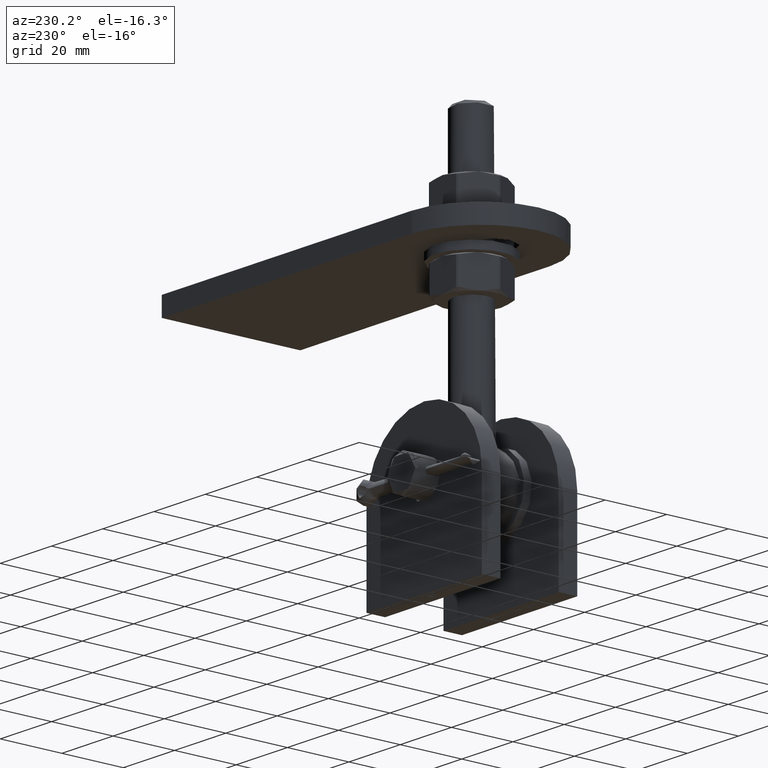
[diagram: clean part render]
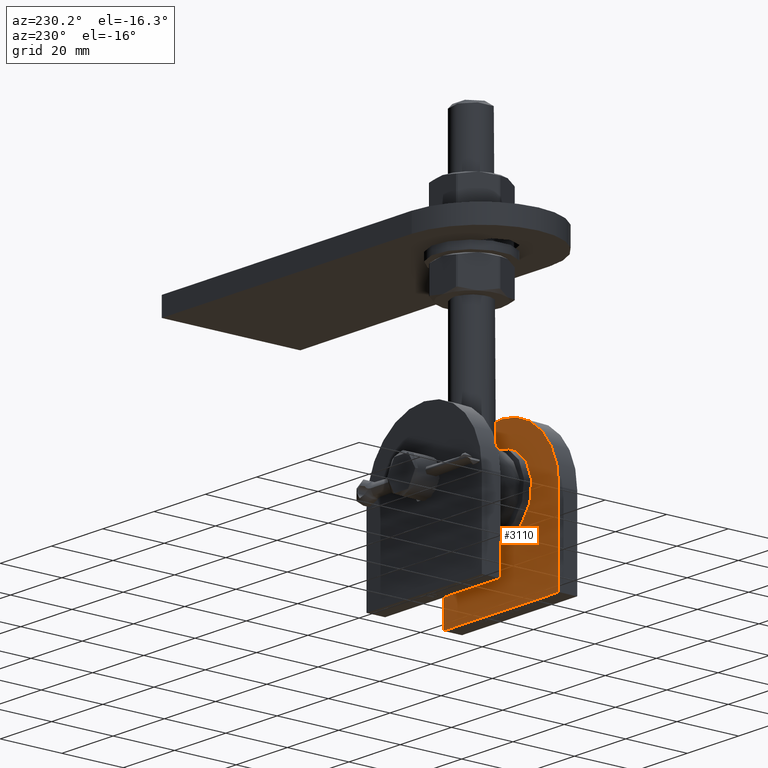
[diagram: same view with one face highlighted and labeled with its STEP entity id]
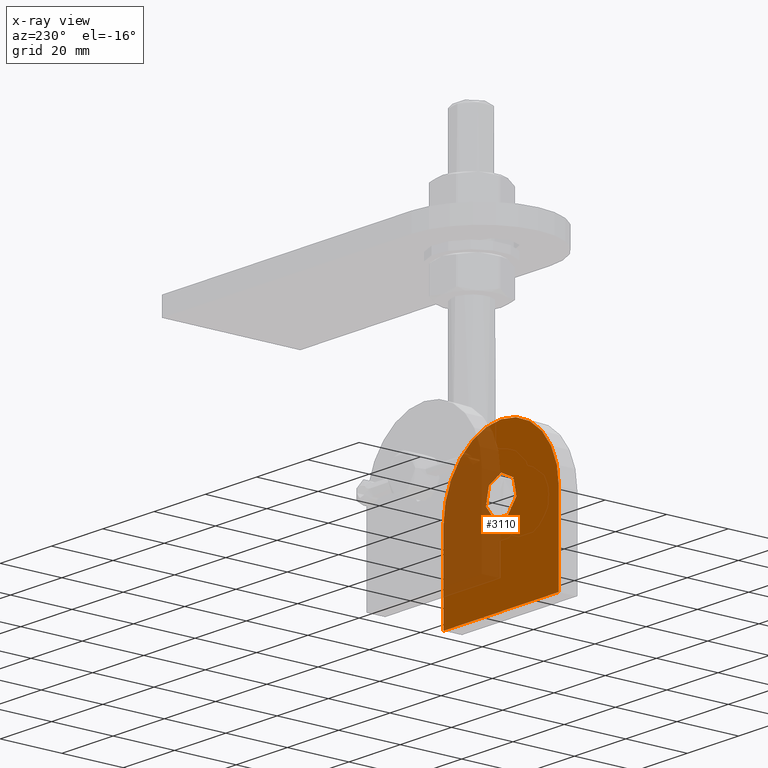
[diagram: x-ray of the same camera — body ghosted, the highlighted face saturated]
A machine part, auxiliary view. The second image highlights one B-rep face of the part: STEP entity #3110.
The next image is the same camera in x-ray: the body ghosted, the highlighted face saturated — about 38% of this face is hidden behind the body in this view.
In plain terms, the highlighted planar face has unit normal (0, -1, 0).
Its self-contained STEP definition (entity closure, byte-faithful):
#944 = PLANE ( 'NONE',  #12430 ) ;
#1237 = CARTESIAN_POINT ( 'NONE',  ( 3.469446951953614189E-15, 2.999999999999988898, 11.09999999999999787 ) ) ;
#1329 = ORIENTED_EDGE ( 'NONE', *, *, #5517, .T. ) ;
#1407 = EDGE_CURVE ( 'NONE', #14426, #14426, #3626, .T. ) ;
#1761 = LINE ( 'NONE', #10234, #8148 ) ;
#2472 = DIRECTION ( 'NONE',  ( 0.000000000000000000, 0.000000000000000000, -1.000000000000000000 ) ) ;
#2527 = FACE_OUTER_BOUND ( 'NONE', #9887, .T. ) ;
#2652 = DIRECTION ( 'NONE',  ( 0.000000000000000000, 1.000000000000000000, -0.000000000000000000 ) ) ;
#3015 = DIRECTION ( 'NONE',  ( 0.000000000000000000, 0.000000000000000000, 1.000000000000000000 ) ) ;
#3110 = ADVANCED_FACE ( 'NONE', ( #2527, #12893 ), #944, .F. ) ;
#3529 = DIRECTION ( 'NONE',  ( 0.000000000000000000, -1.000000000000000000, 0.000000000000000000 ) ) ;
#3626 = CIRCLE ( 'NONE', #8905, 6.099999999999999645 ) ;
#3637 = VERTEX_POINT ( 'NONE', #16197 ) ;
#5286 = DIRECTION ( 'NONE',  ( -0.000000000000000000, -0.000000000000000000, 1.000000000000000000 ) ) ;
#5517 = EDGE_CURVE ( 'NONE', #16701, #3637, #9238, .T. ) ;
#6522 = VECTOR ( 'NONE', #16572, 1000.000000000000000 ) ;
#6559 = ORIENTED_EDGE ( 'NONE', *, *, #13629, .T. ) ;
#6813 = EDGE_CURVE ( 'NONE', #3637, #14545, #8824, .T. ) ;
#6825 = CARTESIAN_POINT ( 'NONE',  ( -22.50000000000000000, 2.999999999999988898, 2.499999999999995115 ) ) ;
#6952 = CIRCLE ( 'NONE', #8396, 22.50000000000000355 ) ;
#7918 = ORIENTED_EDGE ( 'NONE', *, *, #1407, .F. ) ;
#8148 = VECTOR ( 'NONE', #15602, 1000.000000000000000 ) ;
#8386 = VECTOR ( 'NONE', #5286, 1000.000000000000000 ) ;
#8396 = AXIS2_PLACEMENT_3D ( 'NONE', #9496, #2652, #2472 ) ;
#8494 = CARTESIAN_POINT ( 'NONE',  ( -22.49999999999999645, 2.999999999999988898, 2.499999999999999556 ) ) ;
#8652 = CARTESIAN_POINT ( 'NONE',  ( -22.50000000000000000, 2.999999999999988898, -25.00000000000000000 ) ) ;
#8824 = LINE ( 'NONE', #6825, #8386 ) ;
#8905 = AXIS2_PLACEMENT_3D ( 'NONE', #10658, #16085, #3015 ) ;
#9025 = EDGE_CURVE ( 'NONE', #11908, #16701, #1761, .T. ) ;
#9238 = LINE ( 'NONE', #8652, #6522 ) ;
#9496 = CARTESIAN_POINT ( 'NONE',  ( 6.938893903907228378E-15, 2.999999999999988898, 2.499999999999995115 ) ) ;
#9887 = EDGE_LOOP ( 'NONE', ( #17494, #6559, #13845, #1329 ) ) ;
#10234 = CARTESIAN_POINT ( 'NONE',  ( 22.50000000000000000, 2.999999999999988898, -25.00000000000000711 ) ) ;
#10432 = DIRECTION ( 'NONE',  ( 0.000000000000000000, -0.000000000000000000, -1.000000000000000000 ) ) ;
#10658 = CARTESIAN_POINT ( 'NONE',  ( 3.469446951953614189E-15, 2.999999999999988898, 4.999999999999997335 ) ) ;
#11420 = CARTESIAN_POINT ( 'NONE',  ( 22.50000000000000711, 2.999999999999988898, 2.499999999999989786 ) ) ;
#11908 = VERTEX_POINT ( 'NONE', #11420 ) ;
#12430 = AXIS2_PLACEMENT_3D ( 'NONE', #14384, #3529, #10432 ) ;
#12893 = FACE_BOUND ( 'NONE', #13536, .T. ) ;
#13536 = EDGE_LOOP ( 'NONE', ( #7918 ) ) ;
#13629 = EDGE_CURVE ( 'NONE', #14545, #11908, #6952, .T. ) ;
#13845 = ORIENTED_EDGE ( 'NONE', *, *, #9025, .T. ) ;
#14384 = CARTESIAN_POINT ( 'NONE',  ( 6.938893903907228378E-15, 2.999999999999988898, 2.499999999999995115 ) ) ;
#14426 = VERTEX_POINT ( 'NONE', #1237 ) ;
#14545 = VERTEX_POINT ( 'NONE', #8494 ) ;
#14935 = CARTESIAN_POINT ( 'NONE',  ( 22.50000000000000000, 2.999999999999988898, -25.00000000000000711 ) ) ;
#15602 = DIRECTION ( 'NONE',  ( -2.523234146875355998E-16, -0.000000000000000000, -1.000000000000000000 ) ) ;
#16085 = DIRECTION ( 'NONE',  ( 0.000000000000000000, 1.000000000000000000, 0.000000000000000000 ) ) ;
#16197 = CARTESIAN_POINT ( 'NONE',  ( -22.50000000000000000, 2.999999999999988898, -25.00000000000000000 ) ) ;
#16572 = DIRECTION ( 'NONE',  ( -1.000000000000000000, -0.000000000000000000, 1.541976423090495387E-16 ) ) ;
#16701 = VERTEX_POINT ( 'NONE', #14935 ) ;
#17494 = ORIENTED_EDGE ( 'NONE', *, *, #6813, .T. ) ;